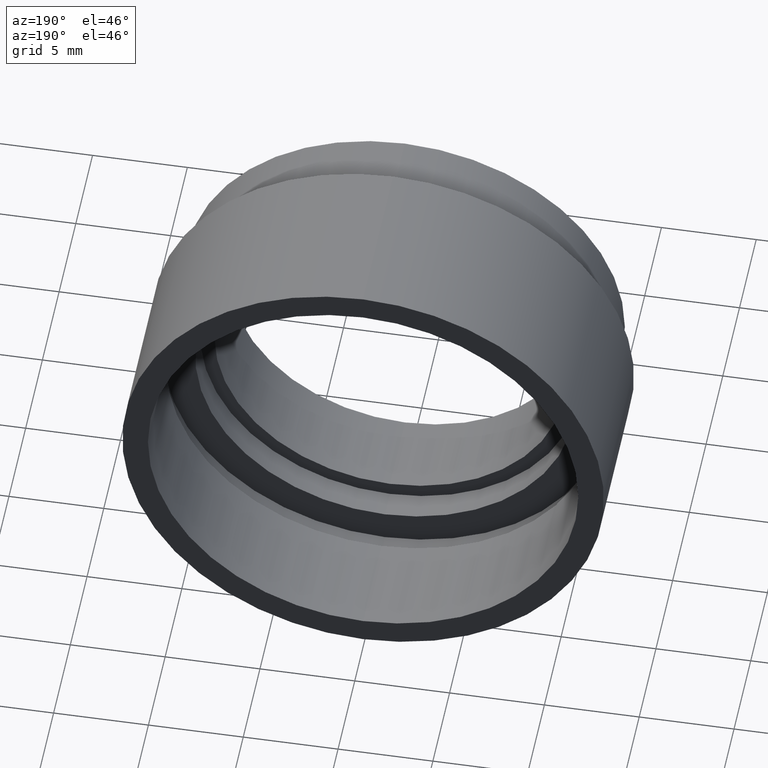
[diagram: clean part render]
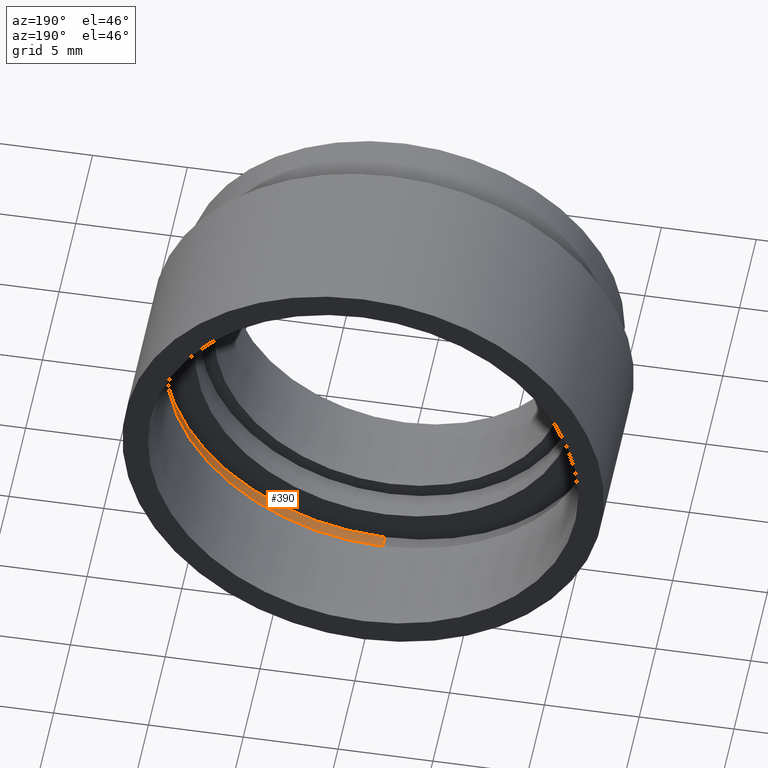
[diagram: same view with one face highlighted and labeled with its STEP entity id]
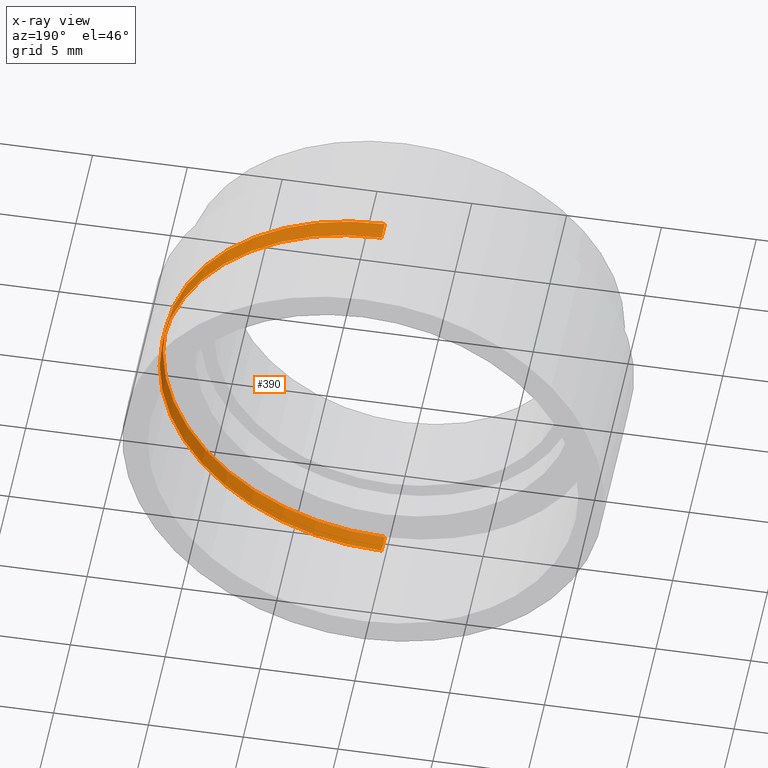
[diagram: x-ray of the same camera — body ghosted, the highlighted face saturated]
A machine part, auxiliary view. The second image highlights one B-rep face of the part: STEP entity #390.
The next image is the same camera in x-ray: the body ghosted, the highlighted face saturated — about 4% of this face is hidden behind the body in this view.
In plain terms, the highlighted cylindrical surface (partial cylindrical patch) has radius 11.7 mm, axis along (-0, -1, -0).
Its self-contained STEP definition (entity closure, byte-faithful):
#12 = CIRCLE ( 'NONE', #298, 11.69999999999999900 ) ;
#15 = DIRECTION ( 'NONE',  ( -0.0000000000000000000, -1.000000000000000000, -0.0000000000000000000 ) ) ;
#24 = EDGE_CURVE ( 'NONE', #462, #648, #71, .T. ) ;
#26 = CARTESIAN_POINT ( 'NONE',  ( 1.432836755002403100E-015, 6.000000000000000900, 11.69999999999999900 ) ) ;
#49 = CYLINDRICAL_SURFACE ( 'NONE', #347, 11.69999999999999900 ) ;
#69 = DIRECTION ( 'NONE',  ( -0.0000000000000000000, -1.000000000000000000, -0.0000000000000000000 ) ) ;
#71 = LINE ( 'NONE', #119, #261 ) ;
#73 = CARTESIAN_POINT ( 'NONE',  ( 0.0000000000000000000, 6.000000000000000900, 0.0000000000000000000 ) ) ;
#77 = CARTESIAN_POINT ( 'NONE',  ( 0.0000000000000000000, 7.000000000000000900, 0.0000000000000000000 ) ) ;
#85 = ORIENTED_EDGE ( 'NONE', *, *, #122, .F. ) ;
#86 = CARTESIAN_POINT ( 'NONE',  ( 1.432836755002403100E-015, 7.000000000000000900, 11.69999999999999900 ) ) ;
#104 = CIRCLE ( 'NONE', #367, 11.69999999999999900 ) ;
#115 = VERTEX_POINT ( 'NONE', #86 ) ;
#119 = CARTESIAN_POINT ( 'NONE',  ( 0.0000000000000000000, 0.0000000000000000000, -11.69999999999999900 ) ) ;
#122 = EDGE_CURVE ( 'NONE', #462, #115, #104, .T. ) ;
#172 = LINE ( 'NONE', #370, #225 ) ;
#192 = CARTESIAN_POINT ( 'NONE',  ( 0.0000000000000000000, 6.000000000000000900, -11.69999999999999900 ) ) ;
#202 = ORIENTED_EDGE ( 'NONE', *, *, #24, .T. ) ;
#225 = VECTOR ( 'NONE', #327, 1000.000000000000000 ) ;
#255 = DIRECTION ( 'NONE',  ( 0.0000000000000000000, 0.0000000000000000000, -1.000000000000000000 ) ) ;
#261 = VECTOR ( 'NONE', #69, 1000.000000000000000 ) ;
#298 = AXIS2_PLACEMENT_3D ( 'NONE', #73, #300, #475 ) ;
#300 = DIRECTION ( 'NONE',  ( -0.0000000000000000000, -1.000000000000000000, -0.0000000000000000000 ) ) ;
#316 = FACE_OUTER_BOUND ( 'NONE', #386, .T. ) ;
#327 = DIRECTION ( 'NONE',  ( -0.0000000000000000000, -1.000000000000000000, -0.0000000000000000000 ) ) ;
#330 = CARTESIAN_POINT ( 'NONE',  ( 0.0000000000000000000, 0.0000000000000000000, 0.0000000000000000000 ) ) ;
#337 = ORIENTED_EDGE ( 'NONE', *, *, #532, .T. ) ;
#347 = AXIS2_PLACEMENT_3D ( 'NONE', #330, #383, #721 ) ;
#367 = AXIS2_PLACEMENT_3D ( 'NONE', #77, #15, #255 ) ;
#370 = CARTESIAN_POINT ( 'NONE',  ( 1.432836755002403100E-015, 0.0000000000000000000, 11.69999999999999900 ) ) ;
#383 = DIRECTION ( 'NONE',  ( -0.0000000000000000000, -1.000000000000000000, -0.0000000000000000000 ) ) ;
#386 = EDGE_LOOP ( 'NONE', ( #712, #85, #202, #337 ) ) ;
#390 = ADVANCED_FACE ( 'NONE', ( #316 ), #49, .F. ) ;
#462 = VERTEX_POINT ( 'NONE', #623 ) ;
#475 = DIRECTION ( 'NONE',  ( 0.0000000000000000000, 0.0000000000000000000, -1.000000000000000000 ) ) ;
#532 = EDGE_CURVE ( 'NONE', #648, #565, #12, .T. ) ;
#565 = VERTEX_POINT ( 'NONE', #26 ) ;
#623 = CARTESIAN_POINT ( 'NONE',  ( 0.0000000000000000000, 7.000000000000000900, -11.69999999999999900 ) ) ;
#648 = VERTEX_POINT ( 'NONE', #192 ) ;
#669 = EDGE_CURVE ( 'NONE', #115, #565, #172, .T. ) ;
#712 = ORIENTED_EDGE ( 'NONE', *, *, #669, .F. ) ;
#721 = DIRECTION ( 'NONE',  ( 0.0000000000000000000, 0.0000000000000000000, -1.000000000000000000 ) ) ;